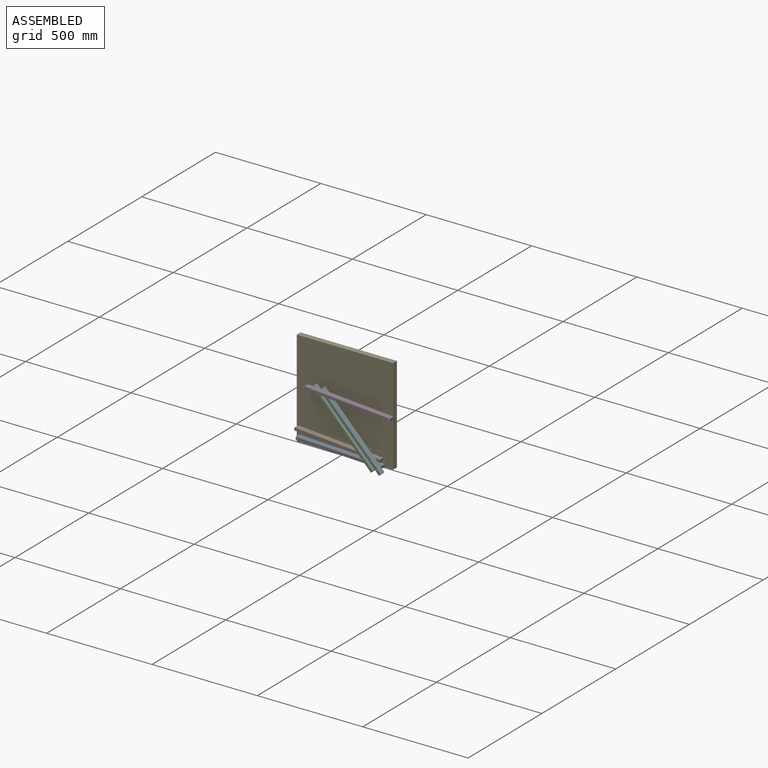
[diagram: assembled view]
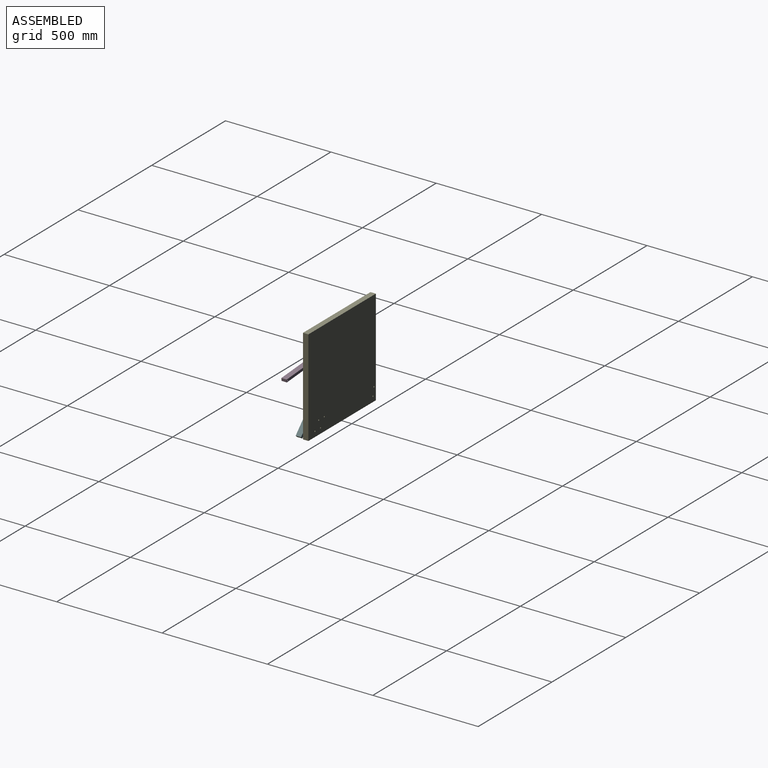
[diagram: assembled view, second angle]
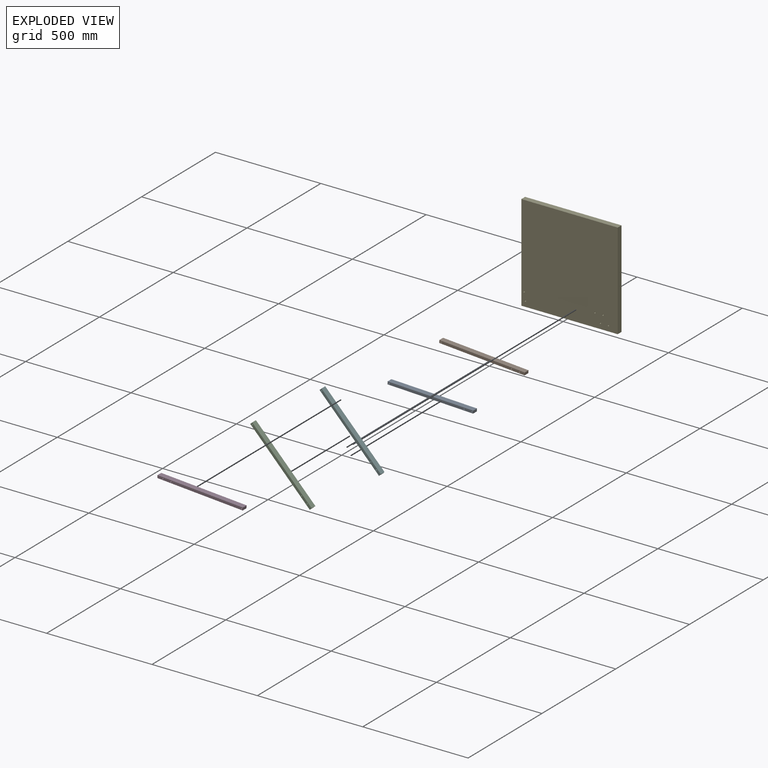
[diagram: exploded view]
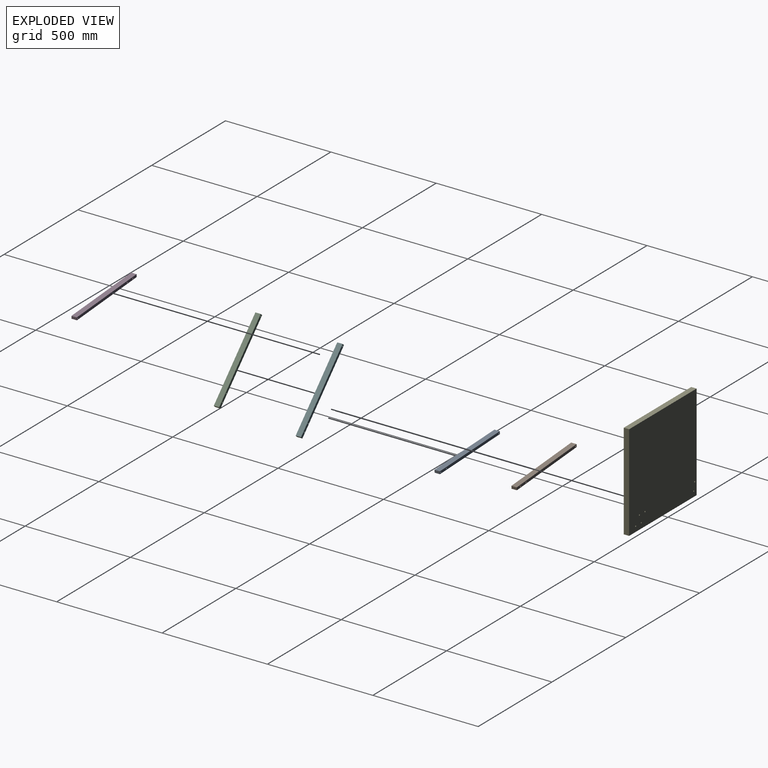
[diagram: exploded view, second angle]
ASSEMBLY  parts=6 mates=7
PART A: 9 faces, bbox 406.4x25.4x12.7 mm
  f0: plane 406.4x25.4mm, normal (0,0,1), area 10322.6mm2, adj f1,f6,f7,f8
  f1: plane 25.4x12.7mm, normal (-1,0,0), area 322.6mm2, adj f0,f2,f7,f8
  f2: plane 406.4x25.4mm, normal (0,0,-1), area 10322.6mm2, adj f1,f6,f7,f8
  f3: cylinder r=3.17mm len=25.4mm, axis (0,1,0), area 506.7mm2, adj f7,f8
  f4: cylinder r=3.17mm len=25.4mm, axis (0,1,0), area 506.7mm2, adj f7,f8
  f5: cylinder r=3.17mm len=25.4mm, axis (0,1,0), area 506.7mm2, adj f7,f8
  f6: plane 25.4x12.7mm, normal (1,0,0), area 322.6mm2, adj f0,f2,f7,f8
  f7: plane 406.4x12.7mm, normal (0,-1,0), area 5066.3mm2, adj f0,f1,f2,f3,f4,f5,f6
  f8: plane 406.4x12.7mm, normal (0,1,0), area 5066.3mm2, adj f0,f1,f2,f3,f4,f5,f6
PART B: 9 faces, bbox 406.4x25.4x12.7 mm
  f0: plane 406.4x25.4mm, normal (0,0,1), area 10322.6mm2, adj f1,f6,f7,f8
  f1: plane 25.4x12.7mm, normal (-1,0,0), area 322.6mm2, adj f0,f2,f7,f8
  f2: plane 406.4x25.4mm, normal (0,0,-1), area 10322.6mm2, adj f1,f6,f7,f8
  f3: cylinder r=3.17mm len=25.4mm, axis (0,1,0), area 506.7mm2, adj f7,f8
  f4: cylinder r=3.17mm len=25.4mm, axis (0,1,0), area 506.7mm2, adj f7,f8
  f5: cylinder r=3.17mm len=25.4mm, axis (0,1,0), area 506.7mm2, adj f7,f8
  f6: plane 25.4x12.7mm, normal (1,0,0), area 322.6mm2, adj f0,f2,f7,f8
  f7: plane 406.4x12.7mm, normal (0,-1,0), area 5066.3mm2, adj f0,f1,f2,f3,f4,f5,f6
  f8: plane 406.4x12.7mm, normal (0,1,0), area 5066.3mm2, adj f0,f1,f2,f3,f4,f5,f6
PART C: 9 faces, bbox 406.4x25.4x12.7 mm
  f0: plane 406.4x25.4mm, normal (0,0,1), area 10322.6mm2, adj f1,f6,f7,f8
  f1: plane 25.4x12.7mm, normal (-1,0,0), area 322.6mm2, adj f0,f2,f7,f8
  f2: plane 406.4x25.4mm, normal (0,0,-1), area 10322.6mm2, adj f1,f6,f7,f8
  f3: cylinder r=3.17mm len=25.4mm, axis (0,1,0), area 506.7mm2, adj f7,f8
  f4: cylinder r=3.17mm len=25.4mm, axis (0,1,0), area 506.7mm2, adj f7,f8
  f5: cylinder r=3.17mm len=25.4mm, axis (0,1,0), area 506.7mm2, adj f7,f8
  f6: plane 25.4x12.7mm, normal (1,0,0), area 322.6mm2, adj f0,f2,f7,f8
  f7: plane 406.4x12.7mm, normal (0,-1,0), area 5066.3mm2, adj f0,f1,f2,f3,f4,f5,f6
  f8: plane 406.4x12.7mm, normal (0,1,0), area 5066.3mm2, adj f0,f1,f2,f3,f4,f5,f6
PART D: 9 faces, bbox 406.4x25.4x12.7 mm
  f0: plane 406.4x25.4mm, normal (0,0,1), area 10322.6mm2, adj f1,f6,f7,f8
  f1: plane 25.4x12.7mm, normal (-1,0,0), area 322.6mm2, adj f0,f2,f7,f8
  f2: plane 406.4x25.4mm, normal (0,0,-1), area 10322.6mm2, adj f1,f6,f7,f8
  f3: cylinder r=3.17mm len=25.4mm, axis (0,1,0), area 506.7mm2, adj f7,f8
  f4: cylinder r=3.17mm len=25.4mm, axis (0,1,0), area 506.7mm2, adj f7,f8
  f5: cylinder r=3.17mm len=25.4mm, axis (0,1,0), area 506.7mm2, adj f7,f8
  f6: plane 25.4x12.7mm, normal (1,0,0), area 322.6mm2, adj f0,f2,f7,f8
  f7: plane 406.4x12.7mm, normal (0,-1,0), area 5066.3mm2, adj f0,f1,f2,f3,f4,f5,f6
  f8: plane 406.4x12.7mm, normal (0,1,0), area 5066.3mm2, adj f0,f1,f2,f3,f4,f5,f6
PART E: 12 faces, bbox 457.2x25.4x457.2 mm
  f0: plane 457.2x25.4mm, normal (0,0,1), area 11612.9mm2, adj f1,f8,f10,f11
  f1: plane 457.2x25.4mm, normal (-1,0,0), area 11612.9mm2, adj f0,f2,f10,f11
  f2: plane 457.2x25.4mm, normal (0,0,-1), area 11612.9mm2, adj f1,f8,f10,f11
  f3: cylinder r=3.17mm len=25.4mm, axis (0,-1,0), area 506.7mm2, adj f10,f11
  f4: cylinder r=3.17mm len=25.4mm, axis (0,-1,0), area 506.7mm2, adj f10,f11
  f5: cylinder r=3.17mm len=25.4mm, axis (0,-1,0), area 506.7mm2, adj f10,f11
  f6: cylinder r=3.17mm len=25.4mm, axis (0,-1,0), area 506.7mm2, adj f10,f11
  f7: cylinder r=3.17mm len=25.4mm, axis (0,-1,0), area 506.7mm2, adj f10,f11
  f8: plane 457.2x25.4mm, normal (1,0,0), area 11612.9mm2, adj f0,f2,f10,f11
  f9: cylinder r=3.17mm len=25.4mm, axis (0,-1,0), area 506.7mm2, adj f10,f11
  f10: plane 457.2x457.2mm, normal (0,1,0), area 208841.8mm2, adj f0,f1,f2,f3,f4,f5,f6,f7
  f11: plane 457.2x457.2mm, normal (0,-1,0), area 208841.8mm2, adj f0,f1,f2,f3,f4,f5,f6,f7
PART F: 9 faces, bbox 406.4x25.4x12.7 mm
  f0: plane 406.4x25.4mm, normal (0,0,1), area 10322.6mm2, adj f1,f6,f7,f8
  f1: plane 25.4x12.7mm, normal (-1,0,0), area 322.6mm2, adj f0,f2,f7,f8
  f2: plane 406.4x25.4mm, normal (0,0,-1), area 10322.6mm2, adj f1,f6,f7,f8
  f3: cylinder r=3.17mm len=25.4mm, axis (0,1,0), area 506.7mm2, adj f7,f8
  f4: cylinder r=3.17mm len=25.4mm, axis (0,1,0), area 506.7mm2, adj f7,f8
  f5: cylinder r=3.17mm len=25.4mm, axis (0,1,0), area 506.7mm2, adj f7,f8
  f6: plane 25.4x12.7mm, normal (1,0,0), area 322.6mm2, adj f0,f2,f7,f8
  f7: plane 406.4x12.7mm, normal (0,-1,0), area 5066.3mm2, adj f0,f1,f2,f3,f4,f5,f6
  f8: plane 406.4x12.7mm, normal (0,1,0), area 5066.3mm2, adj f0,f1,f2,f3,f4,f5,f6
PLACE A rot(axis=(0,1,0),2.4deg) t=(-229.05,-40.67,103.95)mm
PLACE B rot(axis=(0,1,0),4.4deg) t=(-233.72,-40.67,88.68)mm
PLACE C rot(axis=(0,1,0),46.1deg) t=(-234.77,-66.07,102)mm
PLACE D rot(axis=(0,-1,0),175.6deg) t=(-654.22,-91.47,300.79)mm
PLACE E t=(-227.6,-40.67,122.32)mm fixed
PLACE F rot(axis=(0,1,0),46.1deg) t=(-164.99,-66.07,129.71)mm
MATE revolute E.f9 <-> B.f3  axis (0,-1,0) through (-672.1,-40.67,185.82)mm
MATE revolute A.f3 <-> E.f5  axis (0,1,0) through (-665.75,-40.67,147.72)mm
MATE revolute B.f4 <-> F.f5  axis (0,-1,0) through (-298.9,-66.07,157.34)mm
MATE revolute F.f3 <-> D.f5  axis (0,-1,0) through (-532.05,-91.47,399.54)mm
MATE revolute A.f5 <-> C.f4  axis (0,-1,0) through (-310.47,-66.07,132.79)mm
MATE revolute C.f3 <-> D.f4  axis (0,-1,0) through (-570.04,-91.47,402.44)mm
MATE revolute B.f5 <-> C.f5  axis (0,-1,0) through (-336.89,-66.07,160.24)mm
